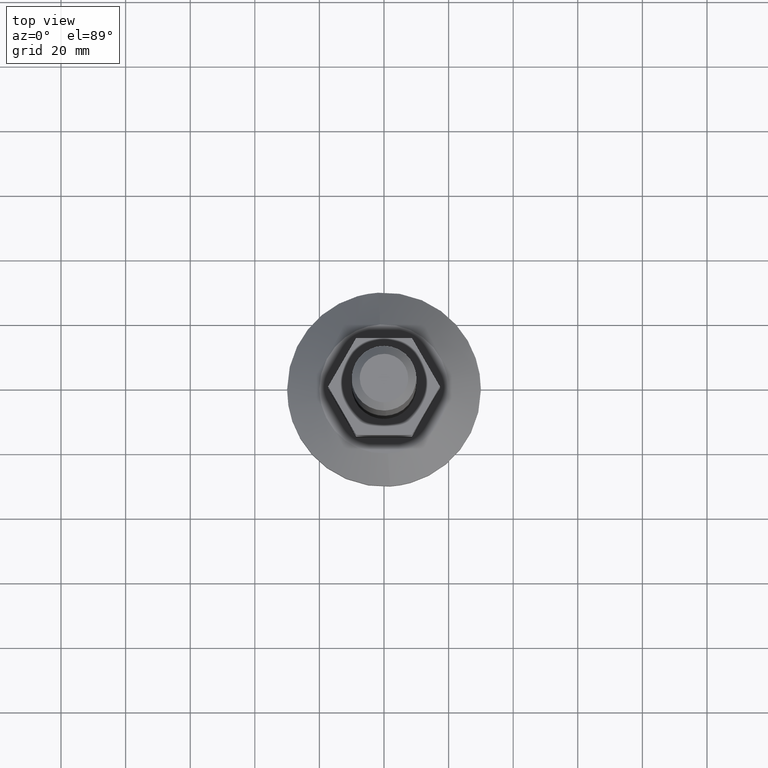
[diagram: clean part render]
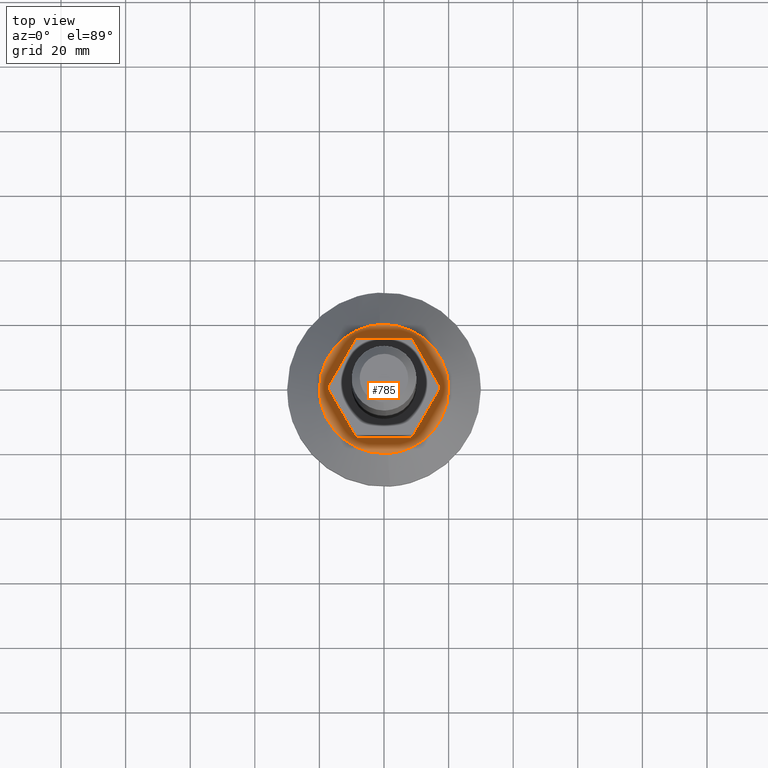
[diagram: same view with one face highlighted and labeled with its STEP entity id]
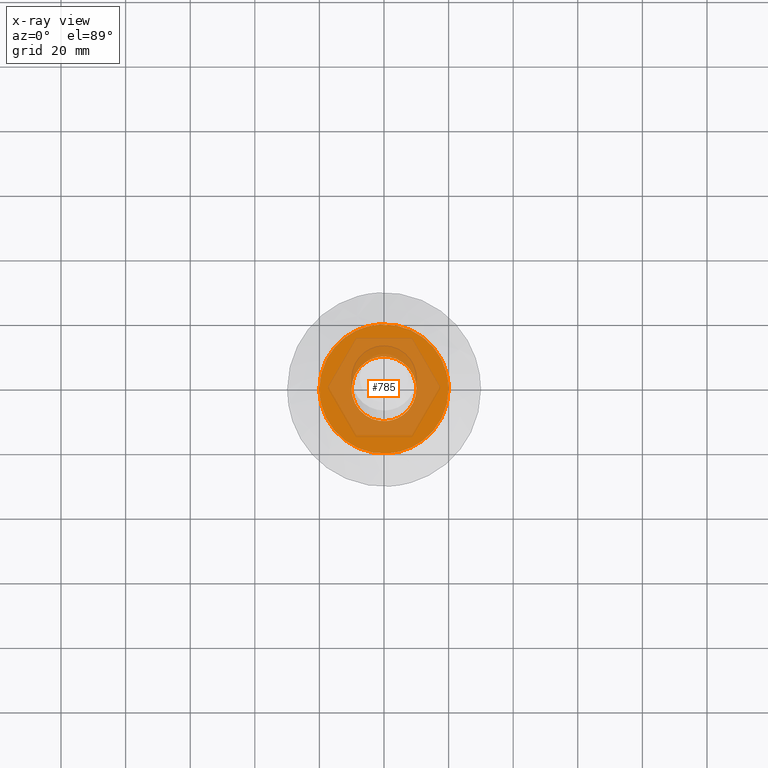
[diagram: x-ray of the same camera — body ghosted, the highlighted face saturated]
A machine part, top view. The second image highlights one B-rep face of the part: STEP entity #785.
The next image is the same camera in x-ray: the body ghosted, the highlighted face saturated — about 51% of this face is hidden behind the body in this view.
In plain terms, the highlighted face is a freeform B-spline surface patch.
Its self-contained STEP definition (entity closure, byte-faithful):
#648=CARTESIAN_POINT('',(21.997999922472239,-21.997507746183580,17.0));
#649=CARTESIAN_POINT('',(-21.998000995355849,-21.997507746183580,17.0));
#650=CARTESIAN_POINT('',(21.997999922472239,21.997507030927849,17.0));
#651=CARTESIAN_POINT('',(-21.998000995355849,21.997507030927849,17.0));
#652=B_SPLINE_SURFACE_WITH_KNOTS('',1,1,((#648,#650),(#649,#651)),.UNSPECIFIED.,.F.,.F.,.U.,(2,2),(2,2),(0.0,43.996000917828077),(0.0,43.995014777111443),.UNSPECIFIED.);
#653=CARTESIAN_POINT('',(1.220970791328431,-19.962695968485530,16.999999999927301));
#654=VERTEX_POINT('',#653);
#655=CARTESIAN_POINT('',(-20.0,0.0,17.0));
#656=VERTEX_POINT('',#655);
#657=CARTESIAN_POINT('',(1.220970791328431,-19.962695968485527,16.999999999927294));
#658=CARTESIAN_POINT('',(0.611055266290868,-20.000000000085233,16.999999999928342));
#659=CARTESIAN_POINT('',(5.127772E-012,-20.000000000083912,16.999999999929450));
#660=CARTESIAN_POINT('',(-19.999999999997510,-20.000000000040671,16.999999999965805));
#661=CARTESIAN_POINT('',(-20.0,0.0,17.0));
#669=(BOUNDED_CURVE()B_SPLINE_CURVE(2,(#657,#658,#659,#660,#661),.UNSPECIFIED.,.F.,.U.)B_SPLINE_CURVE_WITH_KNOTS((3,2,3),(0.739332962236557,0.750000000000000,1.0),.UNSPECIFIED.)CURVE()GEOMETRIC_REPRESENTATION_ITEM()RATIONAL_B_SPLINE_CURVE((0.976072041661605,0.987502787897043,1.0,0.707106781186548,1.0))REPRESENTATION_ITEM(''));
#670=EDGE_CURVE('',#654,#656,#669,.T.);
#671=ORIENTED_EDGE('',*,*,#670,.F.);
#672=CARTESIAN_POINT('',(20.0,0.0,17.0));
#673=VERTEX_POINT('',#672);
#674=CARTESIAN_POINT('',(20.0,0.0,17.0));
#675=CARTESIAN_POINT('',(20.000000000002643,-18.814121337566046,16.999999999963652));
#676=CARTESIAN_POINT('',(1.220970791328431,-19.962695968485527,16.999999999927294));
#684=(BOUNDED_CURVE()B_SPLINE_CURVE(2,(#674,#675,#676),.UNSPECIFIED.,.F.,.U.)B_SPLINE_CURVE_WITH_KNOTS((3,3),(0.500000000000000,0.739332962236557),.UNSPECIFIED.)CURVE()GEOMETRIC_REPRESENTATION_ITEM()RATIONAL_B_SPLINE_CURVE((1.0,0.719603993289505,0.976072041661605))REPRESENTATION_ITEM(''));
#685=EDGE_CURVE('',#673,#654,#684,.T.);
#686=ORIENTED_EDGE('',*,*,#685,.F.);
#687=CARTESIAN_POINT('',(-1.220970791328436,19.962695968485530,16.999999999927301));
#688=VERTEX_POINT('',#687);
#689=CARTESIAN_POINT('',(-1.220970791328436,19.962695968485527,16.999999999927294));
#690=CARTESIAN_POINT('',(-0.611055266290872,20.000000000085233,16.999999999928342));
#691=CARTESIAN_POINT('',(-5.132081E-012,20.000000000083912,16.999999999929450));
#692=CARTESIAN_POINT('',(19.999999999997510,20.000000000040671,16.999999999965805));
#693=CARTESIAN_POINT('',(20.0,0.0,17.0));
#701=(BOUNDED_CURVE()B_SPLINE_CURVE(2,(#689,#690,#691,#692,#693),.UNSPECIFIED.,.F.,.U.)B_SPLINE_CURVE_WITH_KNOTS((3,2,3),(0.239332962236557,0.250000000000000,0.500000000000000),.UNSPECIFIED.)CURVE()GEOMETRIC_REPRESENTATION_ITEM()RATIONAL_B_SPLINE_CURVE((0.976072041661605,0.987502787897043,1.0,0.707106781186548,1.0))REPRESENTATION_ITEM(''));
#702=EDGE_CURVE('',#688,#673,#701,.T.);
#703=ORIENTED_EDGE('',*,*,#702,.F.);
#704=CARTESIAN_POINT('',(-20.0,0.0,17.0));
#705=CARTESIAN_POINT('',(-20.000000000002643,18.814121337566046,16.999999999963652));
#706=CARTESIAN_POINT('',(-1.220970791328436,19.962695968485527,16.999999999927294));
#714=(BOUNDED_CURVE()B_SPLINE_CURVE(2,(#704,#705,#706),.UNSPECIFIED.,.F.,.U.)B_SPLINE_CURVE_WITH_KNOTS((3,3),(0.0,0.239332962236557),.UNSPECIFIED.)CURVE()GEOMETRIC_REPRESENTATION_ITEM()RATIONAL_B_SPLINE_CURVE((1.0,0.719603993289505,0.976072041661605))REPRESENTATION_ITEM(''));
#715=EDGE_CURVE('',#656,#688,#714,.T.);
#716=ORIENTED_EDGE('',*,*,#715,.F.);
#717=EDGE_LOOP('',(#671,#686,#703,#716));
#718=FACE_OUTER_BOUND('',#717,.T.);
#719=CARTESIAN_POINT('',(10.0,0.0,17.0));
#720=VERTEX_POINT('',#719);
#721=CARTESIAN_POINT('',(0.610485395531877,-9.981347984207456,17.000000000000131));
#722=VERTEX_POINT('',#721);
#723=CARTESIAN_POINT('',(10.0,0.0,17.0));
#724=CARTESIAN_POINT('',(9.999999999999998,-9.407060668883867,17.000000000000004));
#725=CARTESIAN_POINT('',(0.610485395531874,-9.981347984207460,17.000000000000004));
#733=(BOUNDED_CURVE()B_SPLINE_CURVE(2,(#723,#724,#725),.UNSPECIFIED.,.F.,.U.)B_SPLINE_CURVE_WITH_KNOTS((3,3),(0.500000000000000,0.739332962238800),.UNSPECIFIED.)CURVE()GEOMETRIC_REPRESENTATION_ITEM()RATIONAL_B_SPLINE_CURVE((1.0,0.719603993286878,0.976072041666410))REPRESENTATION_ITEM(''));
#734=EDGE_CURVE('',#720,#722,#733,.T.);
#735=ORIENTED_EDGE('',*,*,#734,.T.);
#736=CARTESIAN_POINT('',(-10.0,0.0,17.0));
#737=VERTEX_POINT('',#736);
#738=CARTESIAN_POINT('',(0.610485395531877,-9.981347984207456,17.000000000000128));
#739=CARTESIAN_POINT('',(0.305527633077798,-10.0,17.0));
#740=CARTESIAN_POINT('',(0.0,-10.0,17.0));
#741=CARTESIAN_POINT('',(-10.000000000000002,-10.000000000000002,17.000000000000004));
#742=CARTESIAN_POINT('',(-10.0,0.0,17.0));
#750=(BOUNDED_CURVE()B_SPLINE_CURVE(2,(#738,#739,#740,#741,#742),.UNSPECIFIED.,.F.,.U.)B_SPLINE_CURVE_WITH_KNOTS((3,2,3),(0.739332962238800,0.750000000000000,1.0),.UNSPECIFIED.)CURVE()GEOMETRIC_REPRESENTATION_ITEM()RATIONAL_B_SPLINE_CURVE((0.976072041666410,0.987502787899669,1.0,0.707106781186548,1.0))REPRESENTATION_ITEM(''));
#751=EDGE_CURVE('',#722,#737,#750,.T.);
#752=ORIENTED_EDGE('',*,*,#751,.T.);
#753=CARTESIAN_POINT('',(-0.610485395531879,9.981347984207456,17.000000000000131));
#754=VERTEX_POINT('',#753);
#755=CARTESIAN_POINT('',(-10.0,0.0,17.0));
#756=CARTESIAN_POINT('',(-10.0,9.407060668883863,17.0));
#757=CARTESIAN_POINT('',(-0.610485395531879,9.981347984207458,17.000000000000004));
#765=(BOUNDED_CURVE()B_SPLINE_CURVE(2,(#755,#756,#757),.UNSPECIFIED.,.F.,.U.)B_SPLINE_CURVE_WITH_KNOTS((3,3),(0.0,0.239332962238799),.UNSPECIFIED.)CURVE()GEOMETRIC_REPRESENTATION_ITEM()RATIONAL_B_SPLINE_CURVE((1.0,0.719603993286878,0.976072041666410))REPRESENTATION_ITEM(''));
#766=EDGE_CURVE('',#737,#754,#765,.T.);
#767=ORIENTED_EDGE('',*,*,#766,.T.);
#768=CARTESIAN_POINT('',(-0.610485395531879,9.981347984207456,17.000000000000128));
#769=CARTESIAN_POINT('',(-0.305527633077801,10.0,17.0));
#770=CARTESIAN_POINT('',(0.0,10.0,17.0));
#771=CARTESIAN_POINT('',(10.000000000000002,10.000000000000002,17.000000000000004));
#772=CARTESIAN_POINT('',(10.0,0.0,17.0));
#780=(BOUNDED_CURVE()B_SPLINE_CURVE(2,(#768,#769,#770,#771,#772),.UNSPECIFIED.,.F.,.U.)B_SPLINE_CURVE_WITH_KNOTS((3,2,3),(0.239332962238799,0.250000000000000,0.500000000000000),.UNSPECIFIED.)CURVE()GEOMETRIC_REPRESENTATION_ITEM()RATIONAL_B_SPLINE_CURVE((0.976072041666410,0.987502787899669,1.0,0.707106781186548,1.0))REPRESENTATION_ITEM(''));
#781=EDGE_CURVE('',#754,#720,#780,.T.);
#782=ORIENTED_EDGE('',*,*,#781,.T.);
#783=EDGE_LOOP('',(#735,#752,#767,#782));
#784=FACE_BOUND('',#783,.T.);
#785=ADVANCED_FACE('',(#718,#784),#652,.F.);